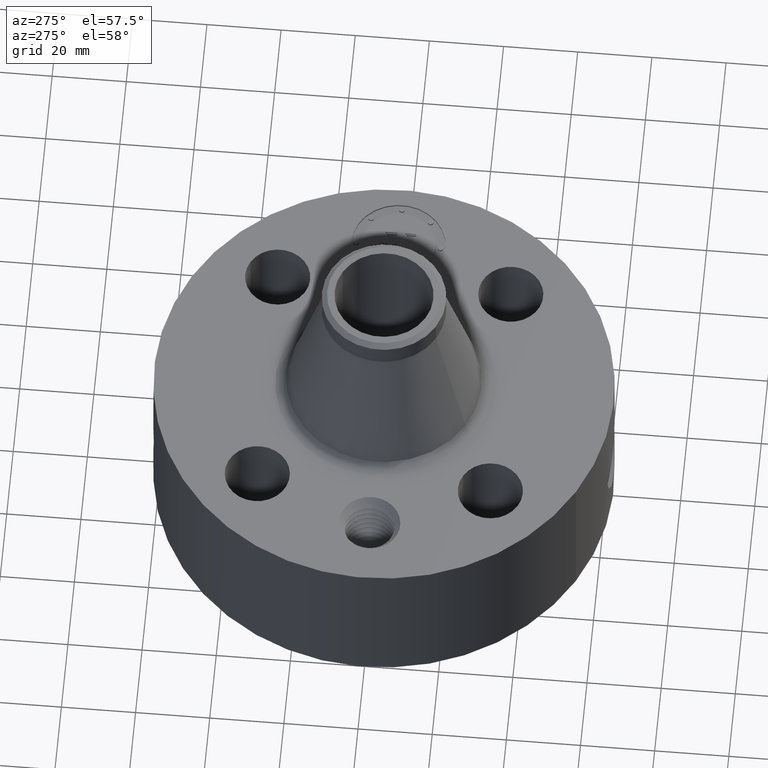
[diagram: clean part render]
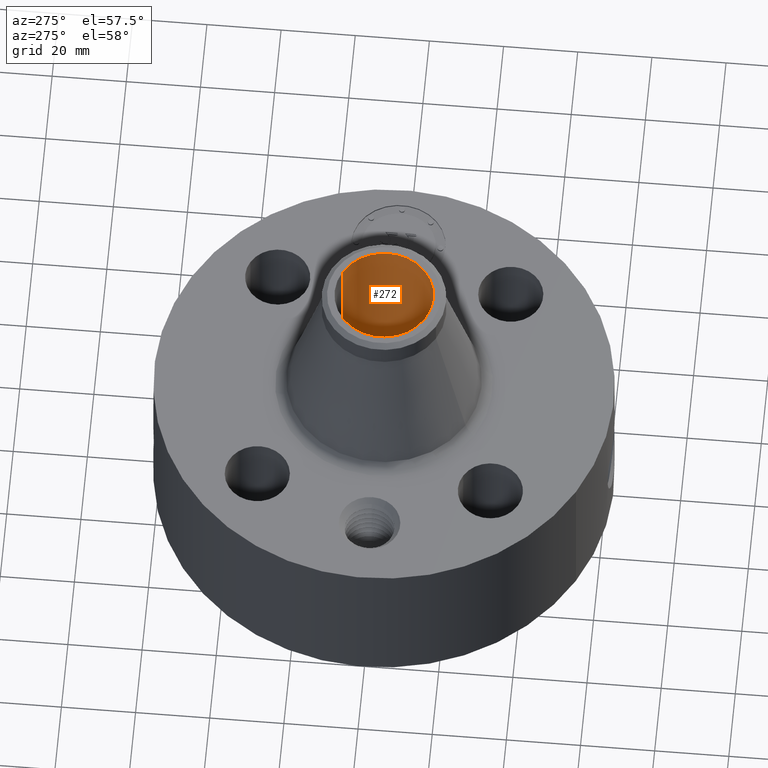
[diagram: same view with one face highlighted and labeled with its STEP entity id]
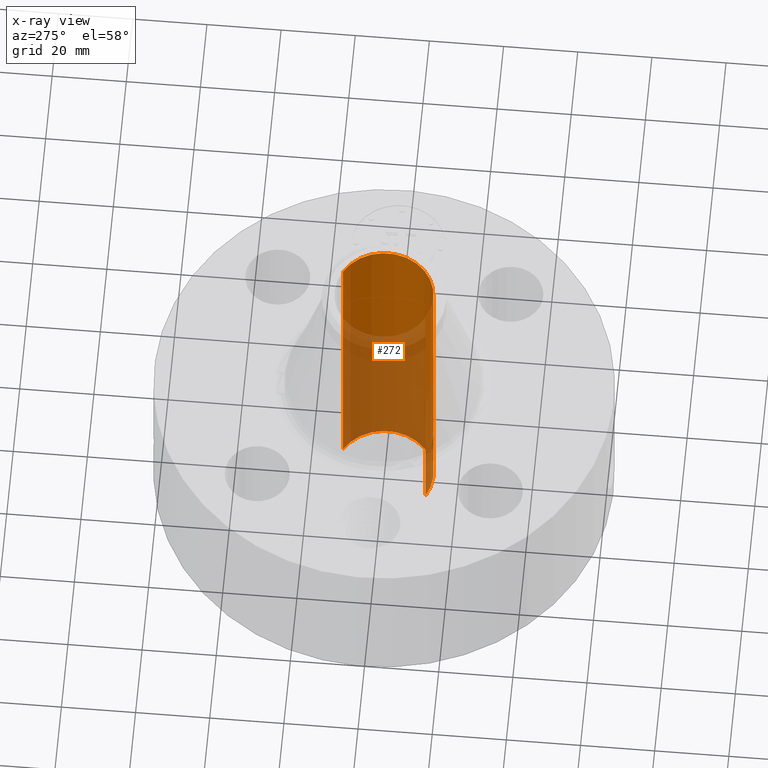
[diagram: x-ray of the same camera — body ghosted, the highlighted face saturated]
A machine part, auxiliary view. The second image highlights one B-rep face of the part: STEP entity #272.
The next image is the same camera in x-ray: the body ghosted, the highlighted face saturated — about 58% of this face is hidden behind the body in this view.
In plain terms, the highlighted cylindrical surface (partial cylindrical patch) has radius 13.3223 mm, axis along (0, 0, -1).
Its self-contained STEP definition (entity closure, byte-faithful):
#232=AXIS2_PLACEMENT_3D('Cylinder Axis2P3D',#229,#230,#231) ;
#236=AXIS2_PLACEMENT_3D('Circle Axis2P3D',#234,#235,$) ;
#252=AXIS2_PLACEMENT_3D('Circle Axis2P3D',#250,#251,$) ;
#81=CARTESIAN_POINT('Control Point',(0.109697820237,-0.512900222497,0.690071807677)) ;
#82=CARTESIAN_POINT('Control Point',(0.103067995137,-0.514318192952,0.677935994236)) ;
#83=CARTESIAN_POINT('Control Point',(0.0947719581257,-0.515980499116,0.666738985536)) ;
#84=CARTESIAN_POINT('Control Point',(0.0849803524267,-0.517739192652,0.656766673013)) ;
#85=CARTESIAN_POINT('Control Point',(0.0538200206065,-0.522434972853,0.632784759627)) ;
#86=CARTESIAN_POINT('Control Point',(0.0149492713957,-0.525251522572,0.621930797341)) ;
#87=CARTESIAN_POINT('Control Point',(-0.0116327403101,-0.525346389715,0.621582825623)) ;
#88=CARTESIAN_POINT('Control Point',(-0.050844759497,-0.522756072016,0.631451392783)) ;
#89=CARTESIAN_POINT('Control Point',(-0.0826523745952,-0.518124441725,0.65468389733)) ;
#90=CARTESIAN_POINT('Control Point',(-0.0927261902239,-0.516359986788,0.664453534266)) ;
#91=CARTESIAN_POINT('Control Point',(-0.11711289479,-0.511563153706,0.695769010533)) ;
#92=CARTESIAN_POINT('Control Point',(-0.128164456245,-0.508593396478,0.735004155189)) ;
#93=CARTESIAN_POINT('Control Point',(-0.128487429324,-0.508500394439,0.761961540034)) ;
#94=CARTESIAN_POINT('Control Point',(-0.121927405505,-0.510284589305,0.787542086653)) ;
#95=CARTESIAN_POINT('Control Point',(-0.109697820237,-0.512900222497,0.809928192329)) ;
#96=CARTESIAN_POINT('Vertex',(0.109697820237,-0.512900222497,0.690071807677)) ;
#98=CARTESIAN_POINT('Vertex',(-0.109697820237,-0.512900222497,0.809928192329)) ;
#206=CARTESIAN_POINT('Control Point',(-0.109697820237,-0.512900222497,0.809928192329)) ;
#207=CARTESIAN_POINT('Control Point',(-0.103067995138,-0.514318192952,0.82206400577)) ;
#208=CARTESIAN_POINT('Control Point',(-0.0947719581265,-0.515980499116,0.833261014469)) ;
#209=CARTESIAN_POINT('Control Point',(-0.0849803524261,-0.517739192652,0.843233326994)) ;
#210=CARTESIAN_POINT('Control Point',(-0.0538200206065,-0.522434972853,0.867215240378)) ;
#211=CARTESIAN_POINT('Control Point',(-0.0149492713964,-0.525251522572,0.878069202665)) ;
#212=CARTESIAN_POINT('Control Point',(0.0116327403097,-0.525346389715,0.878417174383)) ;
#213=CARTESIAN_POINT('Control Point',(0.0508447594976,-0.522756072016,0.868548607223)) ;
#214=CARTESIAN_POINT('Control Point',(0.0826523745964,-0.518124441725,0.845316102675)) ;
#215=CARTESIAN_POINT('Control Point',(0.0927261902223,-0.516359986789,0.835546465741)) ;
#216=CARTESIAN_POINT('Control Point',(0.117112894788,-0.511563153706,0.804230989477)) ;
#217=CARTESIAN_POINT('Control Point',(0.128164456244,-0.508593396478,0.764995844822)) ;
#218=CARTESIAN_POINT('Control Point',(0.128487429323,-0.50850039444,0.738038459967)) ;
#219=CARTESIAN_POINT('Control Point',(0.121927405504,-0.510284589305,0.712457913351)) ;
#220=CARTESIAN_POINT('Control Point',(0.109697820237,-0.512900222497,0.690071807677)) ;
#229=CARTESIAN_POINT('Axis2P3D Location',(0.,0.,1.75000000001)) ;
#234=CARTESIAN_POINT('Axis2P3D Location',(0.,0.,3.50000000001)) ;
#238=CARTESIAN_POINT('Vertex',(0.251458694999,0.460292053713,3.50000000001)) ;
#240=CARTESIAN_POINT('Vertex',(-0.251458694999,-0.460292053713,3.50000000001)) ;
#243=CARTESIAN_POINT('Line Origine',(0.251458694999,0.460292053713,1.75000000001)) ;
#247=CARTESIAN_POINT('Vertex',(0.251458694999,0.460292053713,0.)) ;
#250=CARTESIAN_POINT('Axis2P3D Location',(0.,0.,-5.59482469102E-016)) ;
#254=CARTESIAN_POINT('Vertex',(-0.251458694999,-0.460292053713,0.)) ;
#257=CARTESIAN_POINT('Line Origine',(-0.251458694999,-0.460292053713,1.75000000001)) ;
#230=DIRECTION('Axis2P3D Direction',(0.,0.,-0.0393700787402)) ;
#231=DIRECTION('Axis2P3D XDirection',(-0.0188750212049,-0.0345504945626,0.)) ;
#235=DIRECTION('Axis2P3D Direction',(0.,0.,-0.0393700787402)) ;
#244=DIRECTION('Vector Direction',(0.,0.,-0.0393700787402)) ;
#251=DIRECTION('Axis2P3D Direction',(0.,0.,-0.0393700787402)) ;
#258=DIRECTION('Vector Direction',(0.,0.,-0.0393700787402)) ;
#245=VECTOR('Line Direction',#244,0.0393700787402) ;
#259=VECTOR('Line Direction',#258,0.0393700787402) ;
#263=ORIENTED_EDGE('',*,*,#242,.F.) ;
#264=ORIENTED_EDGE('',*,*,#249,.T.) ;
#265=ORIENTED_EDGE('',*,*,#256,.T.) ;
#266=ORIENTED_EDGE('',*,*,#261,.F.) ;
#269=ORIENTED_EDGE('',*,*,#100,.F.) ;
#270=ORIENTED_EDGE('',*,*,#221,.F.) ;
#271=FACE_BOUND('',#268,.T.) ;
#272=ADVANCED_FACE('PartBody',(#267,#271),#233,.F.) ;
#80=B_SPLINE_CURVE_WITH_KNOTS('',5,(#81,#82,#83,#84,#85,#86,#87,#88,#89,#90,#91,#92,#93,#94,#95),.UNSPECIFIED.,.F.,.U.,(6,3,3,3,6),(0.,2.49672561352,7.04499234136,9.55164643725,14.1571855464),.UNSPECIFIED.) ;
#205=B_SPLINE_CURVE_WITH_KNOTS('',5,(#206,#207,#208,#209,#210,#211,#212,#213,#214,#215,#216,#217,#218,#219,#220),.UNSPECIFIED.,.F.,.U.,(6,3,3,3,6),(0.,2.49672561341,7.04499234123,9.5516464373,14.1571855461),.UNSPECIFIED.) ;
#237=CIRCLE('generated circle',#236,0.524500000002) ;
#253=CIRCLE('generated circle',#252,0.524500000002) ;
#233=CYLINDRICAL_SURFACE('generated cylinder',#232,0.524500000002) ;
#100=EDGE_CURVE('',#97,#99,#80,.T.) ;
#221=EDGE_CURVE('',#99,#97,#205,.T.) ;
#242=EDGE_CURVE('',#239,#241,#237,.T.) ;
#249=EDGE_CURVE('',#239,#248,#246,.T.) ;
#256=EDGE_CURVE('',#248,#255,#253,.T.) ;
#261=EDGE_CURVE('',#241,#255,#260,.T.) ;
#262=EDGE_LOOP('',(#263,#264,#265,#266)) ;
#268=EDGE_LOOP('',(#269,#270)) ;
#267=FACE_OUTER_BOUND('',#262,.T.) ;
#246=LINE('Line',#243,#245) ;
#260=LINE('Line',#257,#259) ;
#97=VERTEX_POINT('',#96) ;
#99=VERTEX_POINT('',#98) ;
#239=VERTEX_POINT('',#238) ;
#241=VERTEX_POINT('',#240) ;
#248=VERTEX_POINT('',#247) ;
#255=VERTEX_POINT('',#254) ;